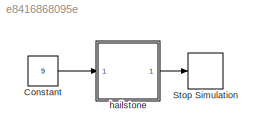
MODEL slx_e8416868095e
KIND model
CONFIG AbsTol = auto
CONFIG EnableMultiTasking = off
CONFIG FixedStep = 1
CONFIG MaxStep = auto
CONFIG MinStep = auto
CONFIG RelTol = 1e-3
CONFIG SampleTimeConstraint = Unconstrained
CONFIG SolverName = FixedStepAuto
CONFIG StartTime = 0
CONFIG StopTime = inf
BLOCK [Constant] Constant
  Value = 9
BLOCK [Stop] Stop Simulation
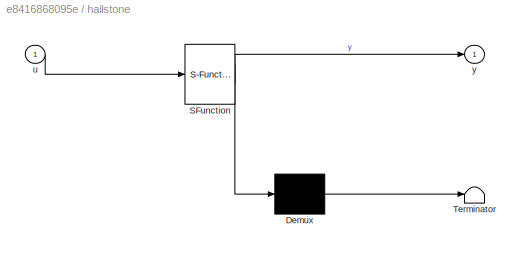
BLOCK [SubSystem] hailstone
  ErrorFcn = Stateflow.Translate.translate
  PermitHierarchicalResolution = ExplicitOnly
  Ports = [1, 1]
  RequestExecContextInheritance = off
  SFBlockType = Chart
  TreatAsAtomicUnit = on
BLOCK [Demux] hailstone/ Demux 
  Outputs = 1
  Ports = [1, 1]
BLOCK [S-Function] hailstone/ SFunction 
  EnableBusSupport = on
  FunctionName = sf_sfun
  PortCounts = [1 2]
  Ports = [1, 2]
  SFcnIsStateOwnerBlock = off
  SFunctionDeploymentMode = off
  Tag = Stateflow S-Function 3
BLOCK [Terminator] hailstone/ Terminator 
BLOCK [Inport] hailstone/u
BLOCK [Outport] hailstone/y
  VectorParamsAs1DForOutWhenUnconnected = off
LINE Constant:1 -> hailstone:1
LINE hailstone:1 -> Stop Simulation:1
CHART hailstone states=3 transitions=7
  STATE_LABEL 'Init\nentry:\n n2 = rem(n,2);\n y = false;\nexit:\n y = isequal(n,1);'
  STATE_LABEL 'Even\nentry,during:\n n = n/2;\n n2 = rem(n,2);\n'
  STATE_LABEL 'Odd\nentry,during:\n n = 3*(n-y)+1;\n n2 = rem(n,2);\n'
CHART  states=0 transitions=0
